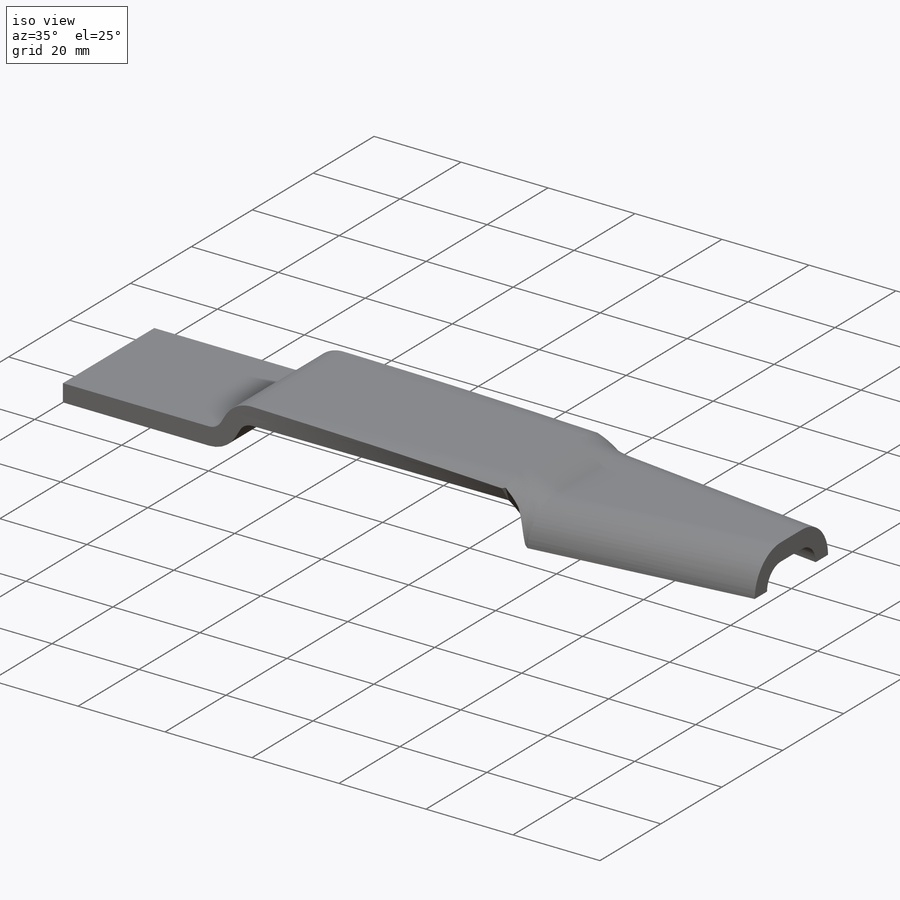
[diagram: iso view]
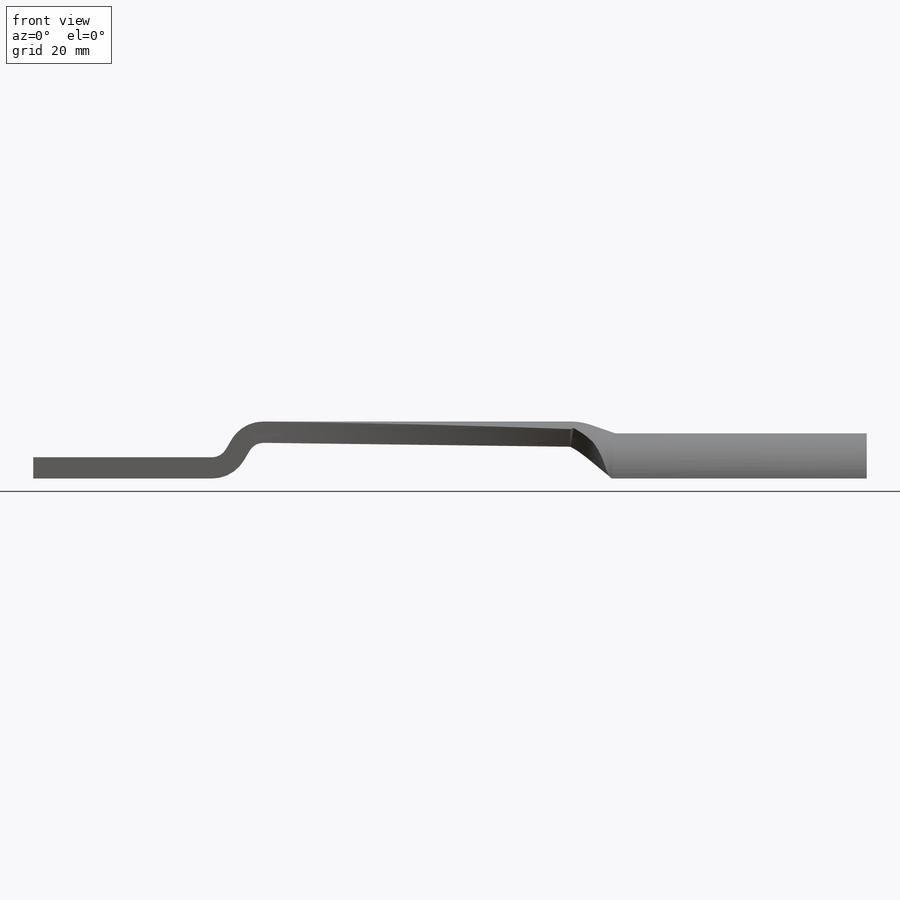
[diagram: front view]
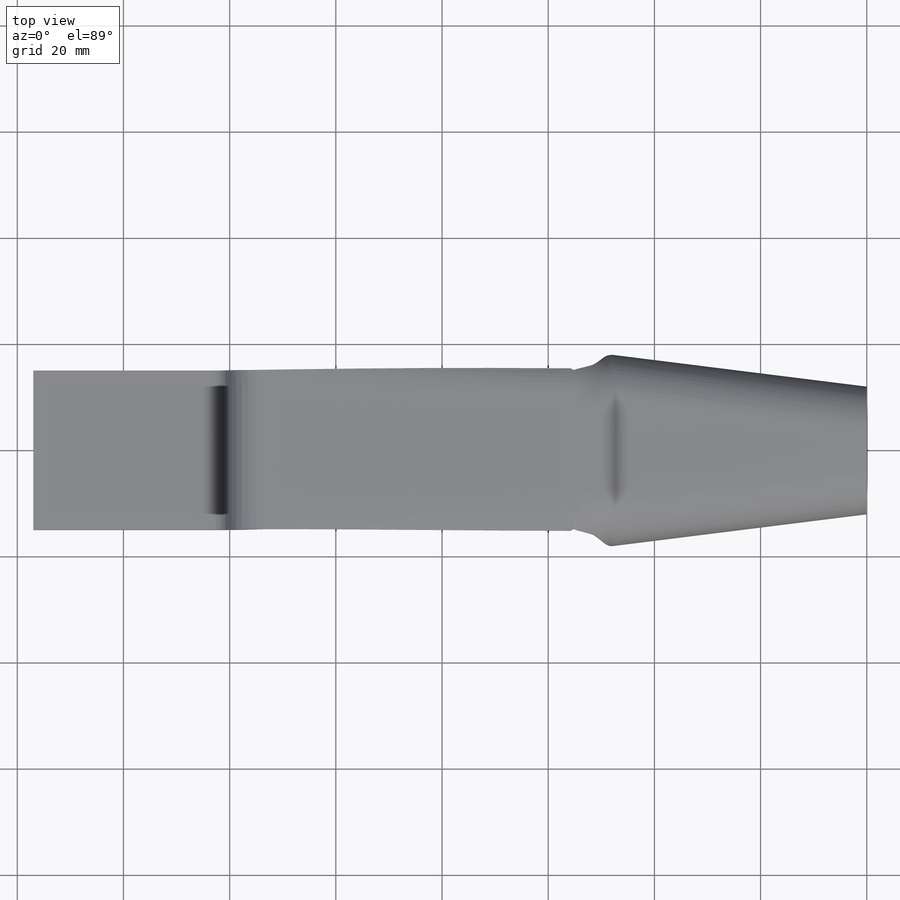
[diagram: top view]
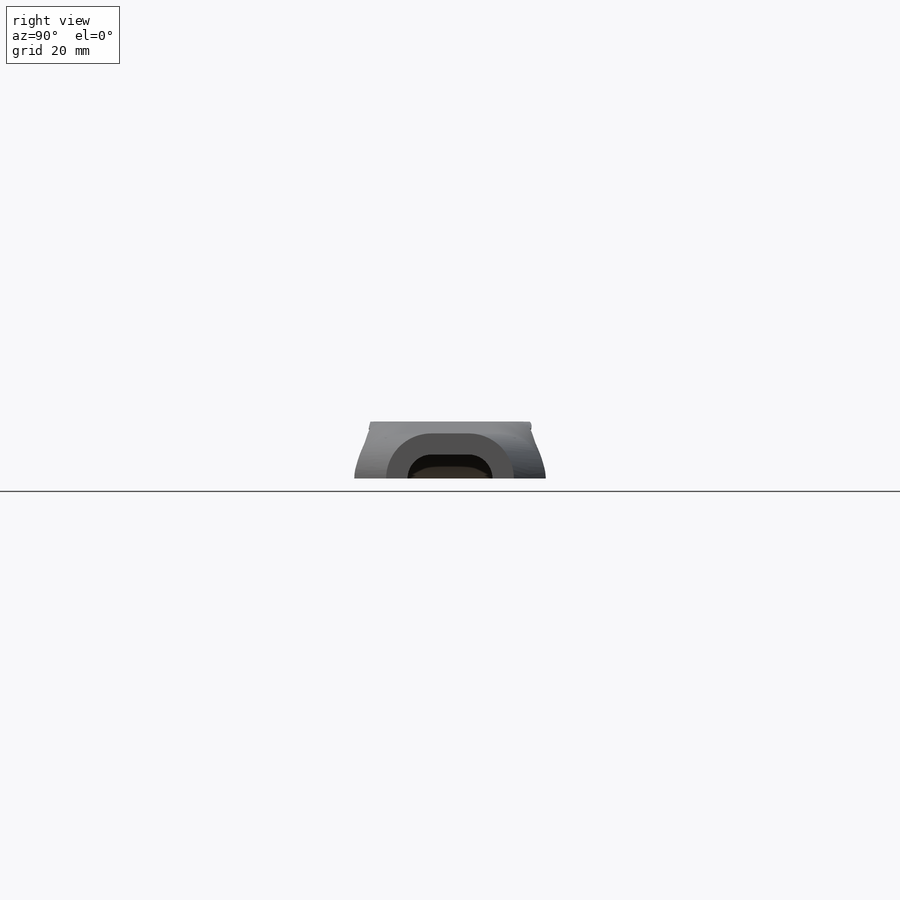
[diagram: right view]
SOLIDWORKS PART (.sldprt)
format: sldprt  version: not decoded by parser v0  size: 434,176 bytes
history: native  units: mm
features: sketch x9, plane x7, fillet x2, material x1, cut_extrude x1 (+9 scaffold rows collapsed)
feature tree (29):
  scaffold x9  (default folders/planes/origin — collapsed)
  material  "Material <nicht festgelegt>"
  plane  "Ebene vorne"
  plane  "Ebene oben"
  plane  "Ebene rechts"
  plane  "Ebene2"  Offset=48mm
  sketch  "Skizze1"  dims[c1.D1=~4.814979mm c1.D3=4.5mm c2.D1=16.0mm c2.D2=4.5mm c2.D3=7.0mm]
  sketch  "Skizze2"  dims[D1=28.0mm D2=4.5mm]
  sketch  "Skizze3"  dims[D1=48.0mm]
  sketch  "Skizze5"  dims[c1.D5=8.0mm c1.D1=~61.727715mm c2.D1=~160.887867deg c3.D1=~4.931581mm c4.D1=~70.887867deg c4.D2=~12.444365mm c5.D2=109.11deg c5.D3=6.87mm c5.D4=61.73mm c5.D5=~70.887867deg c5.D1=~6.491407mm]
  plane  "Ebene3"  Offset=7.84mm
  sketch  "Skizze6"  dims[c1.D1=28.0mm c1.D2=2.5mm c2.D1=10.6mm c2.D2=10.6mm c2.D3=28.0mm]
  plane  "Ebene4"  Offset=59.5mm
  sketch  "Skizze7"  dims[D1=15.0mm D2=15.0mm]
  sketch  "Skizze8"  dims[D1=4.0mm D2=37.66mm D3=157.0mm]
  plane  "Ebene5"  Offset=41.66mm
  sketch  "Skizze9"  dims[c1.D1=15.0mm c1.D2=15.0mm c2.D1=4.0mm]
  fillet  "Verrundung1"  Radius=3mm
  fillet  "Verrundung2"  Radius=7mm
  sketch  "Skizze11"  dims[D1=~10.074027mm D2=~0.496139mm]
  cut_extrude  "Schnitt-Linear austragen2"  Depth=30mm
decode coverage: 12 of 12 modeling features carry decoded parameters
note: ~ marks probable driven/reference dimensions
note: suppression state not decoded; provenance and decode notes live in map.json
